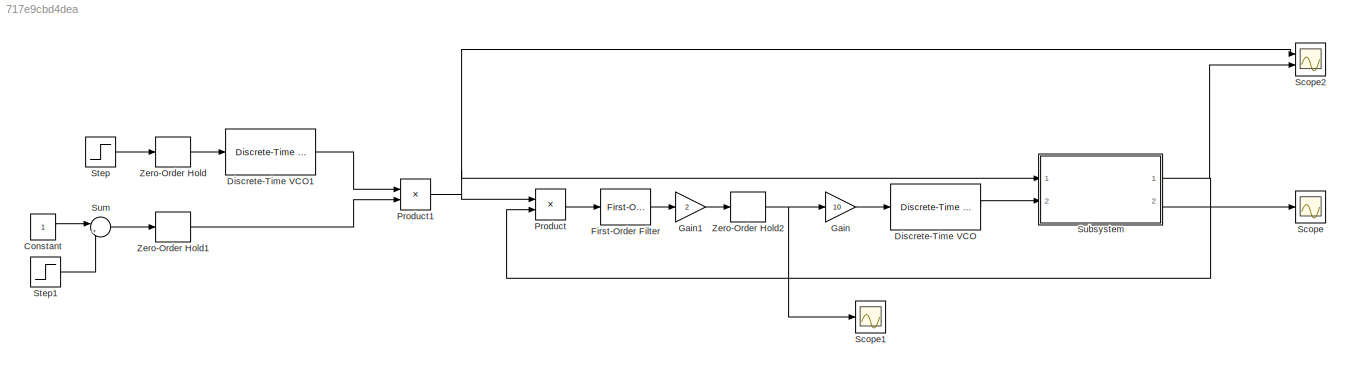
MODEL slx_717e9cbd4dea
KIND model
CONFIG AbsTol = auto
CONFIG EnableMultiTasking = off
CONFIG FixedStep = auto
CONFIG MaxStep = auto
CONFIG MinStep = auto
CONFIG RelTol = 1e-3
CONFIG SampleTimeConstraint = Unconstrained
CONFIG SolverName = VariableStepAuto
CONFIG StartTime = 0.0
CONFIG StopTime = 10.0
BLOCK [Constant] Constant
BLOCK [Reference] Discrete-Time VCO  REF=commsynccomp2/Discrete-Time
VCO
  Ports = [1, 1]
  SourceBlock = commsynccomp2/Discrete-Time\nVCO
  SourceProductBaseCode = CM
  SourceType = Discrete-Time VCO
BLOCK [Reference] Discrete-Time VCO1  REF=commsynccomp2/Discrete-Time
VCO
  Ports = [1, 1]
  SourceBlock = commsynccomp2/Discrete-Time\nVCO
  SourceProductBaseCode = CM
  SourceType = Discrete-Time VCO
BLOCK [Reference] First-Order Filter  REF=spsFirstOrderFilterLib/First-Order
Filter
  Ports = [1, 1]
  SourceBlock = spsFirstOrderFilterLib/First-Order\nFilter
  SourceProductBaseCode = PS
  SourceType = First-Order Filter
BLOCK [Gain] Gain
  Gain = 10
BLOCK [Gain] Gain1
  Gain = 2
BLOCK [Product] Product
  Ports = [2, 1]
BLOCK [Product] Product1
  Ports = [2, 1]
BLOCK [Scope] Scope
  Floating = off
  NumInputPorts = 1
  Ports = [1]
  ScopeSpecificationString = Simulink.scopes.TimeScopeBlockCfg('CurrentConfiguration', extmgr.ConfigurationSet(extmgr.Configuration('Core','General UI',true),extmgr.Configuration('Core','Source UI',true),extmgr.Configuration('Sources','WiredSimulink',true,'DataLoggingSaveFormat','Array','DataLoggingDecimation','1'),extmgr.Configuration('Visuals','Time Domain',true,'SerializedDisplays',{struct('MinYLimReal','0.99153','MaxYLimR...<+1635ch>
BLOCK [Scope] Scope1
  Floating = off
  NumInputPorts = 1
  Ports = [1]
  ScopeSpecificationString = Simulink.scopes.TimeScopeBlockCfg('CurrentConfiguration', extmgr.ConfigurationSet(extmgr.Configuration('Core','General UI',true),extmgr.Configuration('Core','Source UI',true),extmgr.Configuration('Sources','WiredSimulink',true,'DataLoggingVariableName','ScopeData2'),extmgr.Configuration('Visuals','Time Domain',true,'SerializedDisplays',{struct('MinYLimReal','-0.43468','MaxYLimReal','0.78294','YLab...<+1431ch>
BLOCK [Scope] Scope2
  Floating = off
  NumInputPorts = 2
  Ports = [2]
  ScopeSpecificationString = Simulink.scopes.TimeScopeBlockCfg('CurrentConfiguration', extmgr.ConfigurationSet(extmgr.Configuration('Core','General UI',true),extmgr.Configuration('Core','Source UI',true),extmgr.Configuration('Sources','WiredSimulink',true,'DataLoggingVariableName','ScopeData3'),extmgr.Configuration('Visuals','Time Domain',true,'SerializedDisplays',{struct('MinYLimReal','-1.37498','MaxYLimReal','1.375','YLabel...<+1470ch>
BLOCK [Step] Step
  After = -2
  SampleTime = 0
BLOCK [Step] Step1
  After = 0.1
  SampleTime = 0
  Time = 5
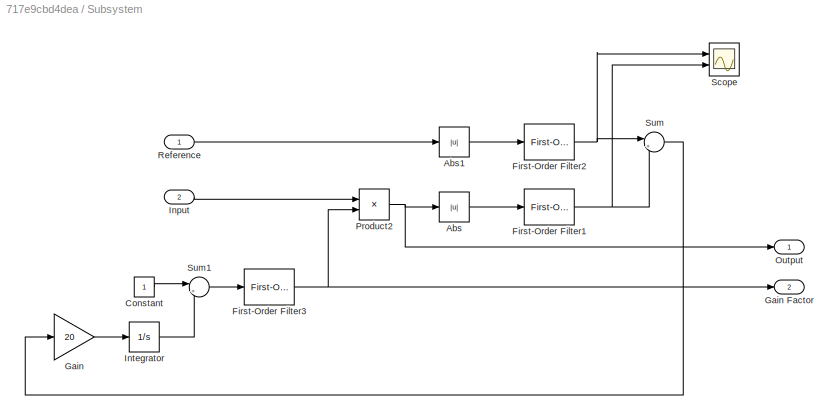
BLOCK [SubSystem] Subsystem
  Ports = [2, 2]
  RequestExecContextInheritance = off
BLOCK [Abs] Subsystem/Abs
  SaturateOnIntegerOverflow = off
BLOCK [Abs] Subsystem/Abs1
  SaturateOnIntegerOverflow = off
BLOCK [Constant] Subsystem/Constant
BLOCK [Reference] Subsystem/First-Order Filter1  REF=spsFirstOrderFilterLib/First-Order
Filter
  Ports = [1, 1]
  SourceBlock = spsFirstOrderFilterLib/First-Order\nFilter
  SourceProductBaseCode = PS
  SourceType = First-Order Filter
BLOCK [Reference] Subsystem/First-Order Filter2  REF=spsFirstOrderFilterLib/First-Order
Filter
  Ports = [1, 1]
  SourceBlock = spsFirstOrderFilterLib/First-Order\nFilter
  SourceProductBaseCode = PS
  SourceType = First-Order Filter
BLOCK [Reference] Subsystem/First-Order Filter3  REF=spsFirstOrderFilterLib/First-Order
Filter
  Ports = [1, 1]
  SourceBlock = spsFirstOrderFilterLib/First-Order\nFilter
  SourceProductBaseCode = PS
  SourceType = First-Order Filter
BLOCK [Gain] Subsystem/Gain
  Gain = 20
BLOCK [Outport] Subsystem/Gain Factor
  Port = 2
BLOCK [Inport] Subsystem/Input
  Port = 2
BLOCK [Integrator] Subsystem/Integrator
  LimitOutput = on
  LowerSaturationLimit = -0.4
  Ports = [1, 1]
  UpperSaturationLimit = 0.4
BLOCK [Outport] Subsystem/Output
BLOCK [Product] Subsystem/Product2
  Ports = [2, 1]
BLOCK [Inport] Subsystem/Reference
BLOCK [Scope] Subsystem/Scope
  Floating = off
  NumInputPorts = 2
  Ports = [2]
  ScopeSpecificationString = Simulink.scopes.TimeScopeBlockCfg('CurrentConfiguration', extmgr.ConfigurationSet(extmgr.Configuration('Core','General UI',true),extmgr.Configuration('Core','Source UI',true),extmgr.Configuration('Sources','WiredSimulink',true,'DataLoggingVariableName','ScopeData1'),extmgr.Configuration('Visuals','Time Domain',true,'SerializedDisplays',{struct('MinYLimReal','-0.09207','MaxYLimReal','0.82864','YLab...<+1472ch>
BLOCK [Sum] Subsystem/Sum
  Inputs = |+-
  Ports = [2, 1]
BLOCK [Sum] Subsystem/Sum1
  Inputs = |++
  Ports = [2, 1]
BLOCK [Sum] Sum
  Inputs = |++
  Ports = [2, 1]
BLOCK [ZeroOrderHold] Zero-Order Hold
  SampleTime = 1/10000
BLOCK [ZeroOrderHold] Zero-Order Hold1
  SampleTime = 1/10000
BLOCK [ZeroOrderHold] Zero-Order Hold2
  SampleTime = 1/10000
LINE Constant:1 -> Sum:1
LINE Discrete-Time VCO1:1 -> Product1:1
LINE Discrete-Time VCO:1 -> Subsystem:2
LINE First-Order Filter:1 -> Gain1:1
LINE Gain1:1 -> Zero-Order Hold2:1
LINE Gain:1 -> Discrete-Time VCO:1
NET Product1:1 -> Product:1, Scope2:1, Subsystem:1
LINE Product:1 -> First-Order Filter:1
LINE Step1:1 -> Sum:2
LINE Step:1 -> Zero-Order Hold:1
LINE Subsystem/Abs1:1 -> Subsystem/First-Order Filter2:1
LINE Subsystem/Abs:1 -> Subsystem/First-Order Filter1:1
LINE Subsystem/Constant:1 -> Subsystem/Sum1:1
NET Subsystem/First-Order Filter1:1 -> Subsystem/Scope:2, Subsystem/Sum:2
NET Subsystem/First-Order Filter2:1 -> Subsystem/Scope:1, Subsystem/Sum:1
NET Subsystem/First-Order Filter3:1 -> Subsystem/Gain Factor:1, Subsystem/Product2:2
LINE Subsystem/Gain:1 -> Subsystem/Integrator:1
LINE Subsystem/Input:1 -> Subsystem/Product2:1
LINE Subsystem/Integrator:1 -> Subsystem/Sum1:2
NET Subsystem/Product2:1 -> Subsystem/Abs:1, Subsystem/Output:1
LINE Subsystem/Reference:1 -> Subsystem/Abs1:1
LINE Subsystem/Sum1:1 -> Subsystem/First-Order Filter3:1
LINE Subsystem/Sum:1 -> Subsystem/Gain:1
NET Subsystem:1 -> Product:2, Scope2:2
LINE Subsystem:2 -> Scope:1
LINE Sum:1 -> Zero-Order Hold1:1
LINE Zero-Order Hold1:1 -> Product1:2
NET Zero-Order Hold2:1 -> Gain:1, Scope1:1
LINE Zero-Order Hold:1 -> Discrete-Time VCO1:1
note: NET lines group one-source signal fan-out (src -> all destinations, sorted); 1:1 wires keep LINE
